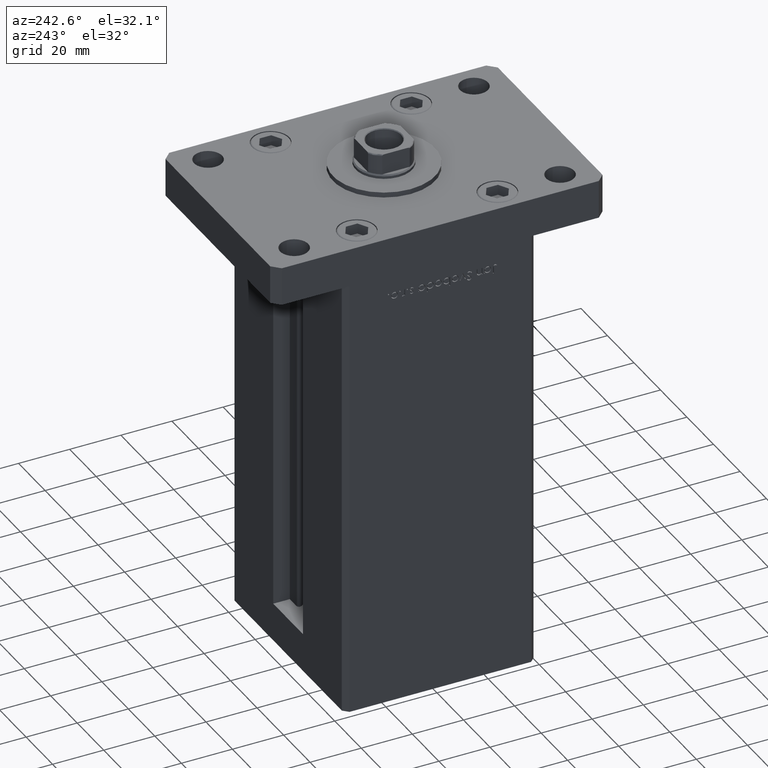
[diagram: clean part render]
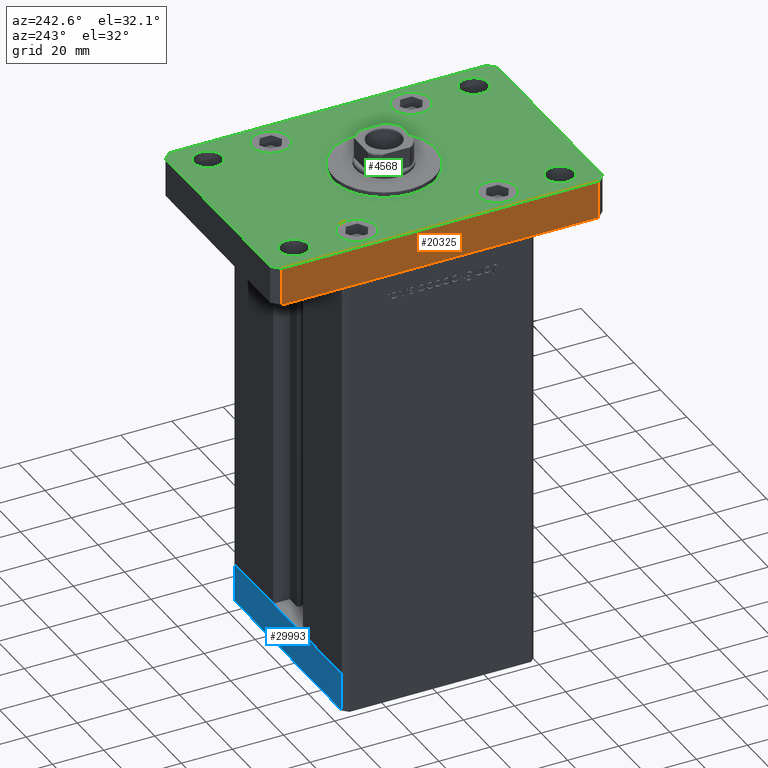
[diagram: same view with three faces highlighted in distinct colors, each labeled with its STEP entity id]
A machine part, auxiliary view with three faces highlighted in distinct colors.
Their STEP definitions:

[orange] entity #20325 — the highlighted planar face has unit normal (1, 0, 0).
#2047 = EDGE_CURVE ( 'NONE', #33279, #49221, #17005, .T. ) ;
#2614 = FACE_OUTER_BOUND ( 'NONE', #50548, .T. ) ;
#3228 = CARTESIAN_POINT ( 'NONE',  ( -42.50000000000002132, 62.00000000000000711, 15.00000000000000000 ) ) ;
#4242 = VERTEX_POINT ( 'NONE', #33516 ) ;
#6405 = PLANE ( 'NONE',  #28785 ) ;
#7475 = ORIENTED_EDGE ( 'NONE', *, *, #2047, .T. ) ;
#8730 = LINE ( 'NONE', #9000, #52113 ) ;
#9000 = CARTESIAN_POINT ( 'NONE',  ( -42.49999999999999289, -62.00000000000001421, 15.00000000000000000 ) ) ;
#13419 = DIRECTION ( 'NONE',  ( 2.238352872228137677E-16, -1.000000000000000000, 0.000000000000000000 ) ) ;
#13445 = ORIENTED_EDGE ( 'NONE', *, *, #19606, .F. ) ;
#16667 = VECTOR ( 'NONE', #53116, 1000.000000000000000 ) ;
#17005 = LINE ( 'NONE', #41432, #22682 ) ;
#18088 = EDGE_CURVE ( 'NONE', #33279, #4242, #40384, .T. ) ;
#19606 = EDGE_CURVE ( 'NONE', #4242, #31845, #8730, .T. ) ;
#20325 = ADVANCED_FACE ( 'NONE', ( #2614 ), #6405, .F. ) ;
#22682 = VECTOR ( 'NONE', #33825, 1000.000000000000000 ) ;
#22698 = DIRECTION ( 'NONE',  ( -2.238352872228137677E-16, 1.000000000000000000, 0.000000000000000000 ) ) ;
#23056 = CARTESIAN_POINT ( 'NONE',  ( -42.50000000000002132, 62.00000000000000711, 15.00000000000000000 ) ) ;
#27320 = CARTESIAN_POINT ( 'NONE',  ( -42.50000000000002132, 62.00000000000000711, 15.00000000000000000 ) ) ;
#28785 = AXIS2_PLACEMENT_3D ( 'NONE', #27320, #40329, #22698 ) ;
#31024 = ORIENTED_EDGE ( 'NONE', *, *, #49327, .T. ) ;
#31845 = VERTEX_POINT ( 'NONE', #36179 ) ;
#33279 = VERTEX_POINT ( 'NONE', #23056 ) ;
#33516 = CARTESIAN_POINT ( 'NONE',  ( -42.49999999999999289, -62.00000000000001421, 15.00000000000000000 ) ) ;
#33825 = DIRECTION ( 'NONE',  ( -0.000000000000000000, -0.000000000000000000, -1.000000000000000000 ) ) ;
#34050 = LINE ( 'NONE', #50594, #43684 ) ;
#36179 = CARTESIAN_POINT ( 'NONE',  ( -42.49999999999999289, -62.00000000000001421, 0.000000000000000000 ) ) ;
#36723 = ORIENTED_EDGE ( 'NONE', *, *, #18088, .F. ) ;
#40329 = DIRECTION ( 'NONE',  ( 1.000000000000000000, 2.238352872228137677E-16, -0.000000000000000000 ) ) ;
#40384 = LINE ( 'NONE', #3228, #16667 ) ;
#41432 = CARTESIAN_POINT ( 'NONE',  ( -42.50000000000002132, 62.00000000000000711, 15.00000000000000000 ) ) ;
#43684 = VECTOR ( 'NONE', #13419, 1000.000000000000000 ) ;
#46537 = CARTESIAN_POINT ( 'NONE',  ( -42.50000000000002132, 62.00000000000000711, 0.000000000000000000 ) ) ;
#49221 = VERTEX_POINT ( 'NONE', #46537 ) ;
#49327 = EDGE_CURVE ( 'NONE', #49221, #31845, #34050, .T. ) ;
#50239 = DIRECTION ( 'NONE',  ( -0.000000000000000000, -0.000000000000000000, -1.000000000000000000 ) ) ;
#50548 = EDGE_LOOP ( 'NONE', ( #31024, #13445, #36723, #7475 ) ) ;
#50594 = CARTESIAN_POINT ( 'NONE',  ( -42.50000000000002132, 62.00000000000000711, 0.000000000000000000 ) ) ;
#52113 = VECTOR ( 'NONE', #50239, 1000.000000000000000 ) ;
#53116 = DIRECTION ( 'NONE',  ( 2.238352872228137677E-16, -1.000000000000000000, 0.000000000000000000 ) ) ;

[blue] entity #29993 — the highlighted planar face has unit normal (0, 1, 0).
#34 = EDGE_CURVE ( 'NONE', #52167, #2236, #8182, .T. ) ;
#128 = CARTESIAN_POINT ( 'NONE',  ( 40.49999999999991473, 37.50000000000000711, -15.00000000000000000 ) ) ;
#1833 = DIRECTION ( 'NONE',  ( -1.000000000000000000, -3.426614273534436165E-16, 0.000000000000000000 ) ) ;
#2236 = VERTEX_POINT ( 'NONE', #6942 ) ;
#2365 = FACE_OUTER_BOUND ( 'NONE', #15322, .T. ) ;
#3162 = VERTEX_POINT ( 'NONE', #47377 ) ;
#6942 = CARTESIAN_POINT ( 'NONE',  ( -40.50000000000000711, 37.49999999999997868, -15.00000000000000000 ) ) ;
#8042 = ORIENTED_EDGE ( 'NONE', *, *, #22632, .T. ) ;
#8182 = LINE ( 'NONE', #20930, #26107 ) ;
#12482 = EDGE_CURVE ( 'NONE', #52167, #27347, #37290, .T. ) ;
#13501 = CARTESIAN_POINT ( 'NONE',  ( 40.49999999999991473, 37.50000000000000711, 0.000000000000000000 ) ) ;
#13969 = LINE ( 'NONE', #17259, #50449 ) ;
#15322 = EDGE_LOOP ( 'NONE', ( #28156, #49044, #27897, #8042 ) ) ;
#16669 = DIRECTION ( 'NONE',  ( 0.000000000000000000, 0.000000000000000000, 1.000000000000000000 ) ) ;
#17259 = CARTESIAN_POINT ( 'NONE',  ( -40.50000000000000711, 37.49999999999997868, -15.00000000000000000 ) ) ;
#18904 = VECTOR ( 'NONE', #1833, 1000.000000000000000 ) ;
#20930 = CARTESIAN_POINT ( 'NONE',  ( 40.49999999999991473, 37.50000000000000711, -15.00000000000000000 ) ) ;
#22632 = EDGE_CURVE ( 'NONE', #2236, #3162, #13969, .T. ) ;
#23564 = CARTESIAN_POINT ( 'NONE',  ( 40.49999999999991473, 37.50000000000000711, 0.000000000000000000 ) ) ;
#26107 = VECTOR ( 'NONE', #41288, 1000.000000000000000 ) ;
#27347 = VERTEX_POINT ( 'NONE', #23564 ) ;
#27897 = ORIENTED_EDGE ( 'NONE', *, *, #34, .T. ) ;
#28156 = ORIENTED_EDGE ( 'NONE', *, *, #42789, .F. ) ;
#29993 = ADVANCED_FACE ( 'NONE', ( #2365 ), #48477, .T. ) ;
#31386 = CARTESIAN_POINT ( 'NONE',  ( 40.49999999999991473, 37.50000000000000711, -15.00000000000000000 ) ) ;
#37290 = LINE ( 'NONE', #128, #39931 ) ;
#38995 = LINE ( 'NONE', #13501, #18904 ) ;
#39931 = VECTOR ( 'NONE', #16669, 1000.000000000000000 ) ;
#41288 = DIRECTION ( 'NONE',  ( -1.000000000000000000, -3.426614273534436165E-16, 0.000000000000000000 ) ) ;
#42789 = EDGE_CURVE ( 'NONE', #27347, #3162, #38995, .T. ) ;
#44656 = AXIS2_PLACEMENT_3D ( 'NONE', #31386, #44941, #45201 ) ;
#44941 = DIRECTION ( 'NONE',  ( -3.426614273534436165E-16, 1.000000000000000000, 0.000000000000000000 ) ) ;
#45097 = CARTESIAN_POINT ( 'NONE',  ( 40.49999999999991473, 37.50000000000000711, -15.00000000000000000 ) ) ;
#45201 = DIRECTION ( 'NONE',  ( -1.000000000000000000, -3.426614273534436165E-16, 0.000000000000000000 ) ) ;
#47377 = CARTESIAN_POINT ( 'NONE',  ( -40.50000000000000711, 37.49999999999997868, 0.000000000000000000 ) ) ;
#48477 = PLANE ( 'NONE',  #44656 ) ;
#49044 = ORIENTED_EDGE ( 'NONE', *, *, #12482, .F. ) ;
#50449 = VECTOR ( 'NONE', #51146, 1000.000000000000000 ) ;
#51146 = DIRECTION ( 'NONE',  ( 0.000000000000000000, 0.000000000000000000, 1.000000000000000000 ) ) ;
#52167 = VERTEX_POINT ( 'NONE', #45097 ) ;

[green] entity #4568 — the highlighted planar face has unit normal (0, 0, 1).
#5 = CARTESIAN_POINT ( 'NONE',  ( -39.50000000000003553, 65.00000000000000000, 15.00000000000000000 ) ) ;
#139 = AXIS2_PLACEMENT_3D ( 'NONE', #37057, #29996, #22383 ) ;
#246 = ORIENTED_EDGE ( 'NONE', *, *, #37199, .T. ) ;
#951 = CIRCLE ( 'NONE', #26112, 7.249999999999999112 ) ;
#953 = CARTESIAN_POINT ( 'NONE',  ( 32.50000000000000000, -27.50000000000000000, 15.00000000000000000 ) ) ;
#997 = CIRCLE ( 'NONE', #139, 5.499999999999994671 ) ;
#1135 = EDGE_CURVE ( 'NONE', #4573, #43738, #38485, .T. ) ;
#1170 = CIRCLE ( 'NONE', #40201, 7.249999999999999112 ) ;
#1209 = CARTESIAN_POINT ( 'NONE',  ( -32.49999999999997868, -52.00000000000000711, 15.00000000000000000 ) ) ;
#1535 = CARTESIAN_POINT ( 'NONE',  ( 32.50000000000000000, 51.99999999999999289, 15.00000000000000000 ) ) ;
#1633 = VERTEX_POINT ( 'NONE', #2888 ) ;
#1737 = EDGE_CURVE ( 'NONE', #20129, #50735, #26173, .T. ) ;
#1739 = DIRECTION ( 'NONE',  ( 1.000000000000000000, 0.000000000000000000, 0.000000000000000000 ) ) ;
#2335 = EDGE_LOOP ( 'NONE', ( #18657, #36933 ) ) ;
#2376 = ORIENTED_EDGE ( 'NONE', *, *, #16554, .F. ) ;
#2707 = LINE ( 'NONE', #23343, #6322 ) ;
#2777 = AXIS2_PLACEMENT_3D ( 'NONE', #28116, #41365, #28642 ) ;
#2859 = AXIS2_PLACEMENT_3D ( 'NONE', #32132, #48658, #24786 ) ;
#2888 = CARTESIAN_POINT ( 'NONE',  ( -25.25000000000000000, -27.50000000000000000, 15.00000000000000000 ) ) ;
#3202 = CARTESIAN_POINT ( 'NONE',  ( 37.99999999999999289, 51.99999999999999289, 15.00000000000000000 ) ) ;
#3228 = CARTESIAN_POINT ( 'NONE',  ( -42.50000000000002132, 62.00000000000000711, 15.00000000000000000 ) ) ;
#3299 = LINE ( 'NONE', #5, #17589 ) ;
#3559 = DIRECTION ( 'NONE',  ( -0.7071067811865466846, -0.7071067811865483499, 0.000000000000000000 ) ) ;
#3588 = DIRECTION ( 'NONE',  ( 0.000000000000000000, 0.000000000000000000, 1.000000000000000000 ) ) ;
#3662 = CARTESIAN_POINT ( 'NONE',  ( -39.50000000000000000, -65.00000000000000000, 15.00000000000000000 ) ) ;
#4242 = VERTEX_POINT ( 'NONE', #33516 ) ;
#4269 = EDGE_CURVE ( 'NONE', #39113, #20341, #49627, .T. ) ;
#4452 = EDGE_LOOP ( 'NONE', ( #18845, #15225 ) ) ;
#4513 = ORIENTED_EDGE ( 'NONE', *, *, #13918, .F. ) ;
#4568 = ADVANCED_FACE ( 'NONE', ( #28337, #7952, #27536, #52472, #24262, #7698, #24522, #44061, #40262, #19649 ), #36193, .T. ) ;
#4573 = VERTEX_POINT ( 'NONE', #41052 ) ;
#4660 = DIRECTION ( 'NONE',  ( 1.000000000000000000, 1.405345600791337191E-15, 0.000000000000000000 ) ) ;
#5007 = EDGE_CURVE ( 'NONE', #26704, #36148, #22796, .T. ) ;
#5245 = AXIS2_PLACEMENT_3D ( 'NONE', #33840, #13204, #33583 ) ;
#5478 = CARTESIAN_POINT ( 'NONE',  ( 32.50000000000000000, -27.50000000000000000, 15.00000000000000000 ) ) ;
#5621 = ORIENTED_EDGE ( 'NONE', *, *, #18088, .T. ) ;
#5777 = EDGE_CURVE ( 'NONE', #43738, #20155, #2707, .T. ) ;
#5957 = EDGE_CURVE ( 'NONE', #1633, #22931, #52258, .T. ) ;
#6301 = ORIENTED_EDGE ( 'NONE', *, *, #1737, .F. ) ;
#6322 = VECTOR ( 'NONE', #31748, 1000.000000000000000 ) ;
#6349 = EDGE_CURVE ( 'NONE', #13955, #18424, #34096, .T. ) ;
#7698 = FACE_OUTER_BOUND ( 'NONE', #31071, .T. ) ;
#7952 = FACE_BOUND ( 'NONE', #49022, .T. ) ;
#8716 = ORIENTED_EDGE ( 'NONE', *, *, #35794, .F. ) ;
#10265 = CARTESIAN_POINT ( 'NONE',  ( -27.00000000000000711, 52.00000000000000000, 15.00000000000000000 ) ) ;
#10990 = CARTESIAN_POINT ( 'NONE',  ( 37.99999999999997868, -52.00000000000000711, 15.00000000000000000 ) ) ;
#11309 = DIRECTION ( 'NONE',  ( 1.000000000000000000, 0.000000000000000000, 0.000000000000000000 ) ) ;
#11571 = AXIS2_PLACEMENT_3D ( 'NONE', #18285, #26731, #27001 ) ;
#11632 = CARTESIAN_POINT ( 'NONE',  ( 42.50000000000000000, 62.00000000000000711, 15.00000000000000000 ) ) ;
#12621 = DIRECTION ( 'NONE',  ( 0.000000000000000000, 0.000000000000000000, 1.000000000000000000 ) ) ;
#12688 = DIRECTION ( 'NONE',  ( 0.000000000000000000, 0.000000000000000000, 1.000000000000000000 ) ) ;
#12756 = CIRCLE ( 'NONE', #47407, 5.499999999999991118 ) ;
#12912 = DIRECTION ( 'NONE',  ( 1.000000000000000000, 0.000000000000000000, 0.000000000000000000 ) ) ;
#13204 = DIRECTION ( 'NONE',  ( 0.000000000000000000, 0.000000000000000000, 1.000000000000000000 ) ) ;
#13421 = CARTESIAN_POINT ( 'NONE',  ( 20.00000000000000000, 2.449293598294706513E-15, 15.00000000000000000 ) ) ;
#13502 = VERTEX_POINT ( 'NONE', #35783 ) ;
#13563 = EDGE_CURVE ( 'NONE', #50735, #20129, #28670, .T. ) ;
#13918 = EDGE_CURVE ( 'NONE', #17438, #26150, #951, .T. ) ;
#13955 = VERTEX_POINT ( 'NONE', #14678 ) ;
#14082 = AXIS2_PLACEMENT_3D ( 'NONE', #1209, #12621, #41904 ) ;
#14259 = DIRECTION ( 'NONE',  ( 0.000000000000000000, 0.000000000000000000, 1.000000000000000000 ) ) ;
#14632 = ORIENTED_EDGE ( 'NONE', *, *, #29929, .T. ) ;
#14678 = CARTESIAN_POINT ( 'NONE',  ( -39.75000000000000711, 27.50000000000000000, 15.00000000000000000 ) ) ;
#15225 = ORIENTED_EDGE ( 'NONE', *, *, #4269, .F. ) ;
#15487 = EDGE_CURVE ( 'NONE', #16707, #26819, #32242, .T. ) ;
#15588 = DIRECTION ( 'NONE',  ( 0.000000000000000000, 0.000000000000000000, 1.000000000000000000 ) ) ;
#15659 = CARTESIAN_POINT ( 'NONE',  ( -32.50000000000000000, -27.50000000000000000, 15.00000000000000000 ) ) ;
#15789 = EDGE_CURVE ( 'NONE', #38051, #24820, #997, .T. ) ;
#16554 = EDGE_CURVE ( 'NONE', #22931, #1633, #34833, .T. ) ;
#16667 = VECTOR ( 'NONE', #53116, 1000.000000000000000 ) ;
#16707 = VERTEX_POINT ( 'NONE', #19609 ) ;
#16782 = ORIENTED_EDGE ( 'NONE', *, *, #15487, .F. ) ;
#16986 = DIRECTION ( 'NONE',  ( 0.000000000000000000, 0.000000000000000000, 1.000000000000000000 ) ) ;
#17438 = VERTEX_POINT ( 'NONE', #17506 ) ;
#17473 = EDGE_CURVE ( 'NONE', #24820, #38051, #21876, .T. ) ;
#17506 = CARTESIAN_POINT ( 'NONE',  ( 39.75000000000000000, -27.50000000000000000, 15.00000000000000000 ) ) ;
#17589 = VECTOR ( 'NONE', #3559, 1000.000000000000000 ) ;
#17939 = CIRCLE ( 'NONE', #36993, 7.249999999999999112 ) ;
#18060 = ORIENTED_EDGE ( 'NONE', *, *, #17473, .F. ) ;
#18088 = EDGE_CURVE ( 'NONE', #33279, #4242, #40384, .T. ) ;
#18285 = CARTESIAN_POINT ( 'NONE',  ( -32.50000000000000000, -27.50000000000000000, 15.00000000000000000 ) ) ;
#18326 = AXIS2_PLACEMENT_3D ( 'NONE', #33063, #49599, #29273 ) ;
#18424 = VERTEX_POINT ( 'NONE', #31639 ) ;
#18657 = ORIENTED_EDGE ( 'NONE', *, *, #38245, .F. ) ;
#18673 = VECTOR ( 'NONE', #43080, 1000.000000000000000 ) ;
#18845 = ORIENTED_EDGE ( 'NONE', *, *, #20915, .F. ) ;
#18943 = CARTESIAN_POINT ( 'NONE',  ( -39.50000000000003553, 65.00000000000000000, 15.00000000000000000 ) ) ;
#19609 = CARTESIAN_POINT ( 'NONE',  ( 26.99999999999998579, -52.00000000000000711, 15.00000000000000000 ) ) ;
#19649 = FACE_BOUND ( 'NONE', #22892, .T. ) ;
#19671 = DIRECTION ( 'NONE',  ( 1.000000000000000000, 0.000000000000000000, 0.000000000000000000 ) ) ;
#19891 = ORIENTED_EDGE ( 'NONE', *, *, #5957, .F. ) ;
#19998 = DIRECTION ( 'NONE',  ( 1.000000000000000000, 0.000000000000000000, 0.000000000000000000 ) ) ;
#20125 = DIRECTION ( 'NONE',  ( 1.000000000000000000, 0.000000000000000000, 0.000000000000000000 ) ) ;
#20129 = VERTEX_POINT ( 'NONE', #23320 ) ;
#20155 = VERTEX_POINT ( 'NONE', #11632 ) ;
#20341 = VERTEX_POINT ( 'NONE', #31932 ) ;
#20594 = VECTOR ( 'NONE', #27331, 1000.000000000000000 ) ;
#20915 = EDGE_CURVE ( 'NONE', #20341, #39113, #48664, .T. ) ;
#21102 = ORIENTED_EDGE ( 'NONE', *, *, #5777, .T. ) ;
#21808 = CARTESIAN_POINT ( 'NONE',  ( -39.75000000000000000, -27.50000000000000000, 15.00000000000000000 ) ) ;
#21876 = CIRCLE ( 'NONE', #27988, 5.499999999999994671 ) ;
#21943 = CARTESIAN_POINT ( 'NONE',  ( -42.49999999999999289, -62.00000000000001421, 15.00000000000000000 ) ) ;
#22043 = DIRECTION ( 'NONE',  ( 1.000000000000000000, 0.000000000000000000, 0.000000000000000000 ) ) ;
#22196 = ORIENTED_EDGE ( 'NONE', *, *, #41072, .F. ) ;
#22383 = DIRECTION ( 'NONE',  ( 1.000000000000000000, 0.000000000000000000, 0.000000000000000000 ) ) ;
#22796 = CIRCLE ( 'NONE', #30606, 7.249999999999999112 ) ;
#22892 = EDGE_LOOP ( 'NONE', ( #16782, #43961 ) ) ;
#22931 = VERTEX_POINT ( 'NONE', #21808 ) ;
#23056 = CARTESIAN_POINT ( 'NONE',  ( -42.50000000000002132, 62.00000000000000711, 15.00000000000000000 ) ) ;
#23212 = CARTESIAN_POINT ( 'NONE',  ( 39.75000000000000000, 27.50000000000000000, 15.00000000000000000 ) ) ;
#23254 = CARTESIAN_POINT ( 'NONE',  ( 25.25000000000000000, -27.50000000000000000, 15.00000000000000000 ) ) ;
#23267 = DIRECTION ( 'NONE',  ( -1.000000000000000000, -3.513364001978340512E-16, 0.000000000000000000 ) ) ;
#23320 = CARTESIAN_POINT ( 'NONE',  ( -20.00000000000000000, 0.000000000000000000, 15.00000000000000000 ) ) ;
#23343 = CARTESIAN_POINT ( 'NONE',  ( 42.50000000000000000, -61.99999999999988631, 15.00000000000000000 ) ) ;
#23915 = CIRCLE ( 'NONE', #37726, 7.249999999999999112 ) ;
#24160 = ORIENTED_EDGE ( 'NONE', *, *, #41561, .T. ) ;
#24262 = FACE_BOUND ( 'NONE', #4452, .T. ) ;
#24393 = DIRECTION ( 'NONE',  ( 1.000000000000000000, 0.000000000000000000, 0.000000000000000000 ) ) ;
#24404 = VECTOR ( 'NONE', #43091, 1000.000000000000114 ) ;
#24458 = AXIS2_PLACEMENT_3D ( 'NONE', #15659, #47941, #19998 ) ;
#24522 = FACE_BOUND ( 'NONE', #2335, .T. ) ;
#24742 = EDGE_CURVE ( 'NONE', #24935, #33279, #3299, .T. ) ;
#24786 = DIRECTION ( 'NONE',  ( 1.000000000000000000, 0.000000000000000000, -0.000000000000000000 ) ) ;
#24820 = VERTEX_POINT ( 'NONE', #28776 ) ;
#24935 = VERTEX_POINT ( 'NONE', #18943 ) ;
#25392 = DIRECTION ( 'NONE',  ( 0.000000000000000000, 0.000000000000000000, 1.000000000000000000 ) ) ;
#25628 = VERTEX_POINT ( 'NONE', #46904 ) ;
#25656 = CARTESIAN_POINT ( 'NONE',  ( 32.49999999999997868, -52.00000000000000711, 15.00000000000000000 ) ) ;
#26112 = AXIS2_PLACEMENT_3D ( 'NONE', #5478, #47246, #22043 ) ;
#26150 = VERTEX_POINT ( 'NONE', #23254 ) ;
#26173 = CIRCLE ( 'NONE', #2777, 20.00000000000000000 ) ;
#26704 = VERTEX_POINT ( 'NONE', #23212 ) ;
#26731 = DIRECTION ( 'NONE',  ( 0.000000000000000000, 0.000000000000000000, 1.000000000000000000 ) ) ;
#26751 = EDGE_CURVE ( 'NONE', #18424, #13955, #1170, .T. ) ;
#26819 = VERTEX_POINT ( 'NONE', #10990 ) ;
#27001 = DIRECTION ( 'NONE',  ( 1.000000000000000000, 0.000000000000000000, 0.000000000000000000 ) ) ;
#27331 = DIRECTION ( 'NONE',  ( -0.7071067811865417996, 0.7071067811865532349, 0.000000000000000000 ) ) ;
#27536 = FACE_BOUND ( 'NONE', #38930, .T. ) ;
#27616 = LINE ( 'NONE', #44139, #37700 ) ;
#27988 = AXIS2_PLACEMENT_3D ( 'NONE', #37598, #16986, #12912 ) ;
#28116 = CARTESIAN_POINT ( 'NONE',  ( 0.000000000000000000, 0.000000000000000000, 15.00000000000000000 ) ) ;
#28337 = FACE_BOUND ( 'NONE', #36470, .T. ) ;
#28397 = CIRCLE ( 'NONE', #44836, 5.499999999999998224 ) ;
#28642 = DIRECTION ( 'NONE',  ( 1.000000000000000000, 0.000000000000000000, 0.000000000000000000 ) ) ;
#28670 = CIRCLE ( 'NONE', #5245, 20.00000000000000000 ) ;
#28721 = EDGE_CURVE ( 'NONE', #45404, #4573, #41305, .T. ) ;
#28776 = CARTESIAN_POINT ( 'NONE',  ( -38.00000000000000000, 52.00000000000000000, 15.00000000000000000 ) ) ;
#29150 = CIRCLE ( 'NONE', #42116, 5.499999999999991118 ) ;
#29273 = DIRECTION ( 'NONE',  ( 1.000000000000000000, 0.000000000000000000, 0.000000000000000000 ) ) ;
#29929 = EDGE_CURVE ( 'NONE', #25628, #24935, #27616, .T. ) ;
#29996 = DIRECTION ( 'NONE',  ( 0.000000000000000000, 0.000000000000000000, 1.000000000000000000 ) ) ;
#30349 = CARTESIAN_POINT ( 'NONE',  ( 39.50000000000001421, -64.99999999999988631, 15.00000000000000000 ) ) ;
#30606 = AXIS2_PLACEMENT_3D ( 'NONE', #53601, #40612, #11309 ) ;
#31071 = EDGE_LOOP ( 'NONE', ( #35484, #42750, #21102, #24160, #14632, #31614, #5621, #246 ) ) ;
#31614 = ORIENTED_EDGE ( 'NONE', *, *, #24742, .T. ) ;
#31639 = CARTESIAN_POINT ( 'NONE',  ( -25.25000000000000711, 27.50000000000000000, 15.00000000000000000 ) ) ;
#31669 = LINE ( 'NONE', #48203, #20594 ) ;
#31748 = DIRECTION ( 'NONE',  ( 0.000000000000000000, 1.000000000000000000, 0.000000000000000000 ) ) ;
#31932 = CARTESIAN_POINT ( 'NONE',  ( -37.99999999999997868, -52.00000000000000711, 15.00000000000000000 ) ) ;
#32132 = CARTESIAN_POINT ( 'NONE',  ( 0.000000000000000000, 0.000000000000000000, 15.00000000000000000 ) ) ;
#32242 = CIRCLE ( 'NONE', #18326, 5.499999999999998224 ) ;
#32999 = DIRECTION ( 'NONE',  ( 1.000000000000000000, 0.000000000000000000, 0.000000000000000000 ) ) ;
#33063 = CARTESIAN_POINT ( 'NONE',  ( 32.49999999999997868, -52.00000000000000711, 15.00000000000000000 ) ) ;
#33279 = VERTEX_POINT ( 'NONE', #23056 ) ;
#33479 = ORIENTED_EDGE ( 'NONE', *, *, #13563, .F. ) ;
#33516 = CARTESIAN_POINT ( 'NONE',  ( -42.49999999999999289, -62.00000000000001421, 15.00000000000000000 ) ) ;
#33583 = DIRECTION ( 'NONE',  ( 1.000000000000000000, 0.000000000000000000, 0.000000000000000000 ) ) ;
#33840 = CARTESIAN_POINT ( 'NONE',  ( 0.000000000000000000, 0.000000000000000000, 15.00000000000000000 ) ) ;
#34096 = CIRCLE ( 'NONE', #47962, 7.249999999999999112 ) ;
#34833 = CIRCLE ( 'NONE', #24458, 7.249999999999999112 ) ;
#35484 = ORIENTED_EDGE ( 'NONE', *, *, #28721, .T. ) ;
#35641 = DIRECTION ( 'NONE',  ( 0.000000000000000000, 0.000000000000000000, 1.000000000000000000 ) ) ;
#35783 = CARTESIAN_POINT ( 'NONE',  ( 27.00000000000001421, 51.99999999999999289, 15.00000000000000000 ) ) ;
#35794 = EDGE_CURVE ( 'NONE', #26150, #17438, #23915, .T. ) ;
#35801 = CARTESIAN_POINT ( 'NONE',  ( 25.25000000000000000, 27.50000000000000000, 15.00000000000000000 ) ) ;
#36148 = VERTEX_POINT ( 'NONE', #35801 ) ;
#36193 = PLANE ( 'NONE',  #2859 ) ;
#36470 = EDGE_LOOP ( 'NONE', ( #6301, #33479 ) ) ;
#36628 = VERTEX_POINT ( 'NONE', #3202 ) ;
#36701 = CARTESIAN_POINT ( 'NONE',  ( -39.50000000000000000, -65.00000000000000000, 15.00000000000000000 ) ) ;
#36933 = ORIENTED_EDGE ( 'NONE', *, *, #41017, .F. ) ;
#36993 = AXIS2_PLACEMENT_3D ( 'NONE', #48394, #35641, #52742 ) ;
#37057 = CARTESIAN_POINT ( 'NONE',  ( -32.50000000000000000, 52.00000000000000000, 15.00000000000000000 ) ) ;
#37199 = EDGE_CURVE ( 'NONE', #4242, #45404, #42543, .T. ) ;
#37367 = CARTESIAN_POINT ( 'NONE',  ( -32.49999999999997868, -52.00000000000000711, 15.00000000000000000 ) ) ;
#37598 = CARTESIAN_POINT ( 'NONE',  ( -32.50000000000000000, 52.00000000000000000, 15.00000000000000000 ) ) ;
#37700 = VECTOR ( 'NONE', #23267, 1000.000000000000000 ) ;
#37726 = AXIS2_PLACEMENT_3D ( 'NONE', #953, #25392, #32999 ) ;
#38051 = VERTEX_POINT ( 'NONE', #10265 ) ;
#38245 = EDGE_CURVE ( 'NONE', #13502, #36628, #29150, .T. ) ;
#38393 = EDGE_LOOP ( 'NONE', ( #18060, #38736 ) ) ;
#38485 = LINE ( 'NONE', #30349, #24404 ) ;
#38736 = ORIENTED_EDGE ( 'NONE', *, *, #15789, .F. ) ;
#38901 = CARTESIAN_POINT ( 'NONE',  ( 32.50000000000000000, 51.99999999999999289, 15.00000000000000000 ) ) ;
#38930 = EDGE_LOOP ( 'NONE', ( #8716, #4513 ) ) ;
#39113 = VERTEX_POINT ( 'NONE', #39521 ) ;
#39451 = DIRECTION ( 'NONE',  ( 0.000000000000000000, 0.000000000000000000, 1.000000000000000000 ) ) ;
#39521 = CARTESIAN_POINT ( 'NONE',  ( -26.99999999999998579, -52.00000000000000711, 15.00000000000000000 ) ) ;
#40016 = CARTESIAN_POINT ( 'NONE',  ( -32.50000000000000711, 27.50000000000000000, 15.00000000000000000 ) ) ;
#40201 = AXIS2_PLACEMENT_3D ( 'NONE', #40016, #15588, #19671 ) ;
#40262 = FACE_BOUND ( 'NONE', #40629, .T. ) ;
#40384 = LINE ( 'NONE', #3228, #16667 ) ;
#40612 = DIRECTION ( 'NONE',  ( 0.000000000000000000, 0.000000000000000000, 1.000000000000000000 ) ) ;
#40629 = EDGE_LOOP ( 'NONE', ( #22196, #52892 ) ) ;
#40747 = CARTESIAN_POINT ( 'NONE',  ( -32.50000000000000711, 27.50000000000000000, 15.00000000000000000 ) ) ;
#40791 = EDGE_CURVE ( 'NONE', #26819, #16707, #28397, .T. ) ;
#41017 = EDGE_CURVE ( 'NONE', #36628, #13502, #12756, .T. ) ;
#41052 = CARTESIAN_POINT ( 'NONE',  ( 39.50000000000001421, -64.99999999999988631, 15.00000000000000000 ) ) ;
#41072 = EDGE_CURVE ( 'NONE', #36148, #26704, #17939, .T. ) ;
#41305 = LINE ( 'NONE', #36701, #41997 ) ;
#41365 = DIRECTION ( 'NONE',  ( 0.000000000000000000, 0.000000000000000000, 1.000000000000000000 ) ) ;
#41561 = EDGE_CURVE ( 'NONE', #20155, #25628, #31669, .T. ) ;
#41878 = EDGE_LOOP ( 'NONE', ( #2376, #19891 ) ) ;
#41904 = DIRECTION ( 'NONE',  ( 1.000000000000000000, 0.000000000000000000, 0.000000000000000000 ) ) ;
#41997 = VECTOR ( 'NONE', #4660, 1000.000000000000000 ) ;
#42116 = AXIS2_PLACEMENT_3D ( 'NONE', #1535, #14259, #50636 ) ;
#42342 = ORIENTED_EDGE ( 'NONE', *, *, #26751, .F. ) ;
#42543 = LINE ( 'NONE', #21943, #18673 ) ;
#42750 = ORIENTED_EDGE ( 'NONE', *, *, #1135, .T. ) ;
#43080 = DIRECTION ( 'NONE',  ( 0.7071067811865483499, -0.7071067811865466846, 0.000000000000000000 ) ) ;
#43091 = DIRECTION ( 'NONE',  ( 0.7071067811865459074, 0.7071067811865491270, 0.000000000000000000 ) ) ;
#43738 = VERTEX_POINT ( 'NONE', #48507 ) ;
#43961 = ORIENTED_EDGE ( 'NONE', *, *, #40791, .F. ) ;
#44061 = FACE_BOUND ( 'NONE', #41878, .T. ) ;
#44139 = CARTESIAN_POINT ( 'NONE',  ( 39.50000000000002842, 65.00000000000002842, 15.00000000000000000 ) ) ;
#44562 = ORIENTED_EDGE ( 'NONE', *, *, #6349, .F. ) ;
#44836 = AXIS2_PLACEMENT_3D ( 'NONE', #25656, #49513, #46518 ) ;
#45404 = VERTEX_POINT ( 'NONE', #3662 ) ;
#46068 = AXIS2_PLACEMENT_3D ( 'NONE', #37367, #12688, #24393 ) ;
#46518 = DIRECTION ( 'NONE',  ( 1.000000000000000000, 0.000000000000000000, 0.000000000000000000 ) ) ;
#46904 = CARTESIAN_POINT ( 'NONE',  ( 39.50000000000002842, 65.00000000000002842, 15.00000000000000000 ) ) ;
#47246 = DIRECTION ( 'NONE',  ( 0.000000000000000000, 0.000000000000000000, 1.000000000000000000 ) ) ;
#47407 = AXIS2_PLACEMENT_3D ( 'NONE', #38901, #39451, #1739 ) ;
#47941 = DIRECTION ( 'NONE',  ( 0.000000000000000000, 0.000000000000000000, 1.000000000000000000 ) ) ;
#47962 = AXIS2_PLACEMENT_3D ( 'NONE', #40747, #3588, #20125 ) ;
#48203 = CARTESIAN_POINT ( 'NONE',  ( 42.50000000000000000, 62.00000000000000711, 15.00000000000000000 ) ) ;
#48394 = CARTESIAN_POINT ( 'NONE',  ( 32.50000000000000000, 27.50000000000000000, 15.00000000000000000 ) ) ;
#48507 = CARTESIAN_POINT ( 'NONE',  ( 42.50000000000000000, -61.99999999999988631, 15.00000000000000000 ) ) ;
#48658 = DIRECTION ( 'NONE',  ( 0.000000000000000000, 0.000000000000000000, 1.000000000000000000 ) ) ;
#48664 = CIRCLE ( 'NONE', #46068, 5.499999999999994671 ) ;
#49022 = EDGE_LOOP ( 'NONE', ( #44562, #42342 ) ) ;
#49513 = DIRECTION ( 'NONE',  ( 0.000000000000000000, 0.000000000000000000, 1.000000000000000000 ) ) ;
#49599 = DIRECTION ( 'NONE',  ( 0.000000000000000000, 0.000000000000000000, 1.000000000000000000 ) ) ;
#49627 = CIRCLE ( 'NONE', #14082, 5.499999999999994671 ) ;
#50636 = DIRECTION ( 'NONE',  ( 1.000000000000000000, 0.000000000000000000, 0.000000000000000000 ) ) ;
#50735 = VERTEX_POINT ( 'NONE', #13421 ) ;
#52258 = CIRCLE ( 'NONE', #11571, 7.249999999999999112 ) ;
#52472 = FACE_BOUND ( 'NONE', #38393, .T. ) ;
#52742 = DIRECTION ( 'NONE',  ( 1.000000000000000000, 0.000000000000000000, 0.000000000000000000 ) ) ;
#52892 = ORIENTED_EDGE ( 'NONE', *, *, #5007, .F. ) ;
#53116 = DIRECTION ( 'NONE',  ( 2.238352872228137677E-16, -1.000000000000000000, 0.000000000000000000 ) ) ;
#53601 = CARTESIAN_POINT ( 'NONE',  ( 32.50000000000000000, 27.50000000000000000, 15.00000000000000000 ) ) ;